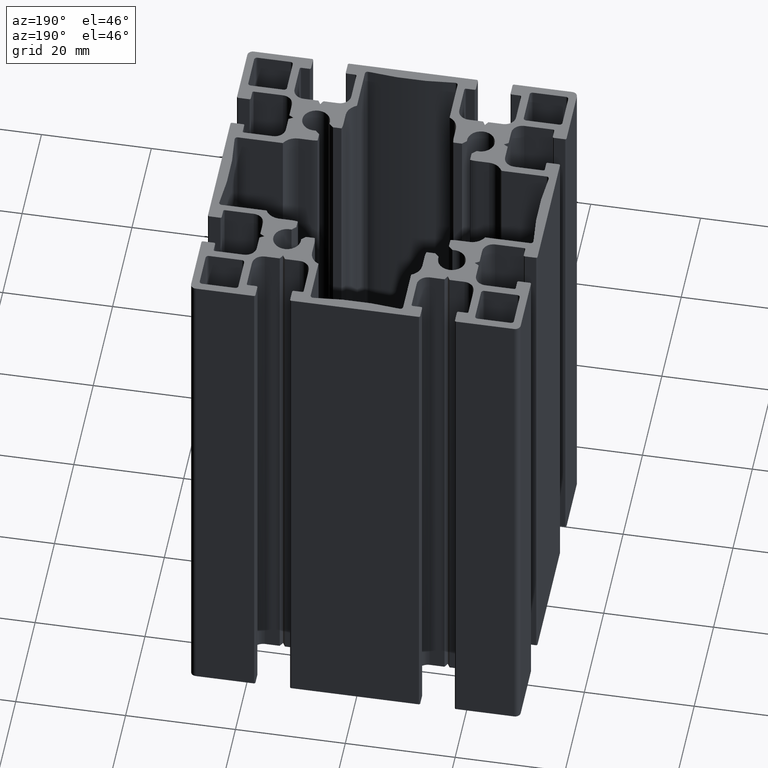
[diagram: clean part render]
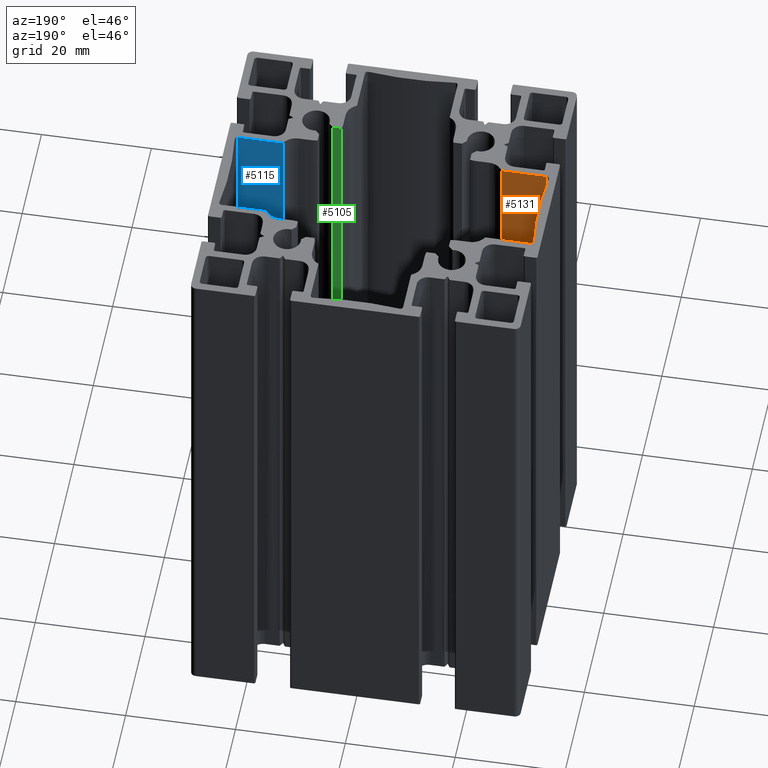
[diagram: same view with three faces highlighted in distinct colors, each labeled with its STEP entity id]
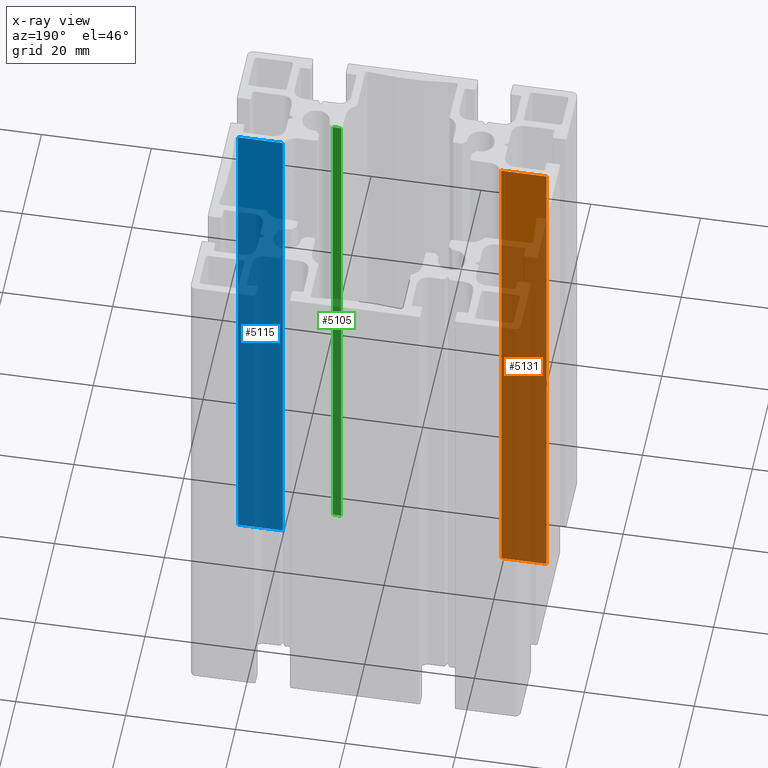
[diagram: x-ray of the same camera — body ghosted, the three highlighted faces saturated]
A machine part, auxiliary view with three faces highlighted in distinct colors.
The next image is the same camera in x-ray (body ghosted, the three faces saturated) — at least one of them is partly hidden behind the body in this view.
Their STEP definitions:

[orange] entity #5131 — the highlighted planar face has unit normal (0, -1, 0).
#455=FACE_OUTER_BOUND('',#731,.T.);
#731=EDGE_LOOP('',(#4099,#4100,#4101,#4102));
#1081=LINE('',#7928,#1625);
#1219=LINE('',#8468,#1763);
#1276=LINE('',#8622,#1820);
#1277=LINE('',#8624,#1821);
#1625=VECTOR('',#6230,10.);
#1763=VECTOR('',#6648,10.);
#1820=VECTOR('',#6827,10.);
#1821=VECTOR('',#6830,10.);
#2255=VERTEX_POINT('',#7925);
#2256=VERTEX_POINT('',#7927);
#2517=VERTEX_POINT('',#8465);
#2518=VERTEX_POINT('',#8467);
#2790=EDGE_CURVE('',#2255,#2256,#1081,.T.);
#3064=EDGE_CURVE('',#2517,#2518,#1219,.T.);
#3140=EDGE_CURVE('',#2518,#2255,#1276,.T.);
#3141=EDGE_CURVE('',#2517,#2256,#1277,.T.);
#4099=ORIENTED_EDGE('',*,*,#3064,.F.);
#4100=ORIENTED_EDGE('',*,*,#3141,.T.);
#4101=ORIENTED_EDGE('',*,*,#2790,.F.);
#4102=ORIENTED_EDGE('',*,*,#3140,.F.);
#4959=PLANE('',#5668);
#5131=ADVANCED_FACE('',(#455),#4959,.F.);
#5668=AXIS2_PLACEMENT_3D('',#8623,#6828,#6829);
#6230=DIRECTION('',(-1.,0.,0.));
#6648=DIRECTION('',(1.,0.,0.));
#6827=DIRECTION('',(0.,0.,1.));
#6828=DIRECTION('center_axis',(0.,-1.,0.));
#6829=DIRECTION('ref_axis',(1.,0.,0.));
#6830=DIRECTION('',(0.,0.,1.));
#7925=CARTESIAN_POINT('',(-19.8976011598961,-8.43962907192366,100.));
#7927=CARTESIAN_POINT('',(-28.0910586386221,-8.43962907192366,100.));
#7928=CARTESIAN_POINT('',(-14.0455293193111,-8.43962907192366,100.));
#8465=CARTESIAN_POINT('',(-28.0910586386221,-8.43962907192366,0.));
#8467=CARTESIAN_POINT('',(-19.8976011598961,-8.43962907192366,0.));
#8468=CARTESIAN_POINT('',(-14.0455293193111,-8.43962907192366,0.));
#8622=CARTESIAN_POINT('',(-19.8976011598961,-8.43962907192366,0.));
#8623=CARTESIAN_POINT('Origin',(-28.0910586386221,-8.43962907192366,0.));
#8624=CARTESIAN_POINT('',(-28.0910586386221,-8.43962907192366,0.));

[blue] entity #5115 — the highlighted planar face has unit normal (0, -1, 0).
#439=FACE_OUTER_BOUND('',#715,.T.);
#715=EDGE_LOOP('',(#4035,#4036,#4037,#4038));
#1094=LINE('',#7994,#1638);
#1206=LINE('',#8402,#1750);
#1262=LINE('',#8592,#1806);
#1263=LINE('',#8594,#1807);
#1638=VECTOR('',#6285,10.);
#1750=VECTOR('',#6593,10.);
#1806=VECTOR('',#6781,10.);
#1807=VECTOR('',#6784,10.);
#2287=VERTEX_POINT('',#7991);
#2288=VERTEX_POINT('',#7993);
#2485=VERTEX_POINT('',#8399);
#2486=VERTEX_POINT('',#8401);
#2824=EDGE_CURVE('',#2287,#2288,#1094,.T.);
#3030=EDGE_CURVE('',#2485,#2486,#1206,.T.);
#3126=EDGE_CURVE('',#2486,#2287,#1262,.T.);
#3127=EDGE_CURVE('',#2485,#2288,#1263,.T.);
#4035=ORIENTED_EDGE('',*,*,#3030,.F.);
#4036=ORIENTED_EDGE('',*,*,#3127,.T.);
#4037=ORIENTED_EDGE('',*,*,#2824,.F.);
#4038=ORIENTED_EDGE('',*,*,#3126,.F.);
#4952=PLANE('',#5652);
#5115=ADVANCED_FACE('',(#439),#4952,.F.);
#5652=AXIS2_PLACEMENT_3D('',#8593,#6782,#6783);
#6285=DIRECTION('',(-1.,0.,0.));
#6593=DIRECTION('',(1.,0.,0.));
#6781=DIRECTION('',(0.,0.,1.));
#6782=DIRECTION('center_axis',(0.,-1.,0.));
#6783=DIRECTION('ref_axis',(1.,0.,0.));
#6784=DIRECTION('',(0.,0.,1.));
#7991=CARTESIAN_POINT('',(28.088141469707,-8.43962907192627,100.));
#7993=CARTESIAN_POINT('',(19.8946839909809,-8.43962907192627,100.));
#7994=CARTESIAN_POINT('',(9.94734199549043,-8.43962907192627,100.));
#8399=CARTESIAN_POINT('',(19.8946839909809,-8.43962907192627,0.));
#8401=CARTESIAN_POINT('',(28.088141469707,-8.43962907192627,0.));
#8402=CARTESIAN_POINT('',(9.94734199549043,-8.43962907192627,0.));
#8592=CARTESIAN_POINT('',(28.088141469707,-8.43962907192627,0.));
#8593=CARTESIAN_POINT('Origin',(19.8946839909809,-8.43962907192627,0.));
#8594=CARTESIAN_POINT('',(19.8946839909809,-8.43962907192627,0.));

[green] entity #5105 — the highlighted planar face has unit normal (0, -1, 0).
#429=FACE_OUTER_BOUND('',#705,.T.);
#705=EDGE_LOOP('',(#3995,#3996,#3997,#3998));
#952=LINE('',#7483,#1496);
#1097=LINE('',#8006,#1641);
#1104=LINE('',#8041,#1648);
#1203=LINE('',#8390,#1747);
#1496=VECTOR('',#5899,10.);
#1641=VECTOR('',#6296,10.);
#1648=VECTOR('',#6329,10.);
#1747=VECTOR('',#6584,10.);
#2039=VERTEX_POINT('',#7479);
#2041=VERTEX_POINT('',#7482);
#2293=VERTEX_POINT('',#8005);
#2307=VERTEX_POINT('',#8037);
#2568=EDGE_CURVE('',#2041,#2039,#952,.T.);
#2831=EDGE_CURVE('',#2041,#2293,#1097,.T.);
#2849=EDGE_CURVE('',#2293,#2307,#1104,.T.);
#3024=EDGE_CURVE('',#2307,#2039,#1203,.T.);
#3995=ORIENTED_EDGE('',*,*,#2568,.T.);
#3996=ORIENTED_EDGE('',*,*,#3024,.F.);
#3997=ORIENTED_EDGE('',*,*,#2849,.F.);
#3998=ORIENTED_EDGE('',*,*,#2831,.F.);
#4948=PLANE('',#5642);
#5105=ADVANCED_FACE('',(#429),#4948,.F.);
#5642=AXIS2_PLACEMENT_3D('',#8574,#6753,#6754);
#5899=DIRECTION('',(0.,0.,-1.));
#6296=DIRECTION('',(-1.,0.,0.));
#6329=DIRECTION('',(0.,0.,-1.));
#6584=DIRECTION('',(1.,0.,0.));
#6753=DIRECTION('center_axis',(0.,-1.,0.));
#6754=DIRECTION('ref_axis',(-1.,0.,0.));
#7479=CARTESIAN_POINT('',(11.740685978745,-13.875,0.));
#7482=CARTESIAN_POINT('',(11.740685978745,-13.875,100.));
#7483=CARTESIAN_POINT('',(11.740685978745,-13.875,100.));
#8005=CARTESIAN_POINT('',(10.2436543112543,-13.875,100.));
#8006=CARTESIAN_POINT('',(6.37903519833571,-13.875,100.));
#8037=CARTESIAN_POINT('',(10.2436543112543,-13.875,0.));
#8041=CARTESIAN_POINT('',(10.2436543112543,-13.875,0.));
#8390=CARTESIAN_POINT('',(6.37903519833571,-13.875,0.));
#8574=CARTESIAN_POINT('Origin',(12.7580703966715,-13.875,100.));